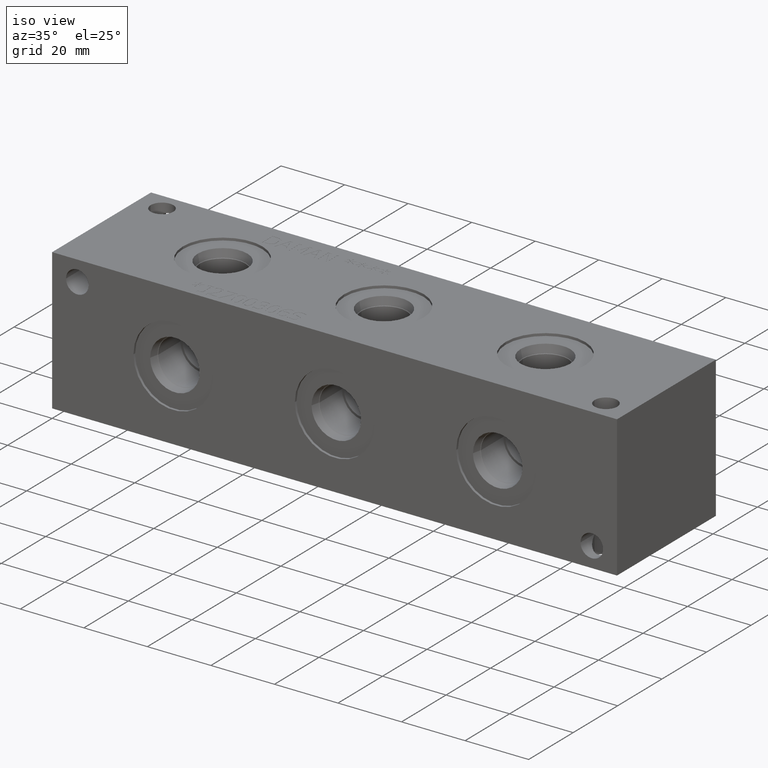
[diagram: clean part render]
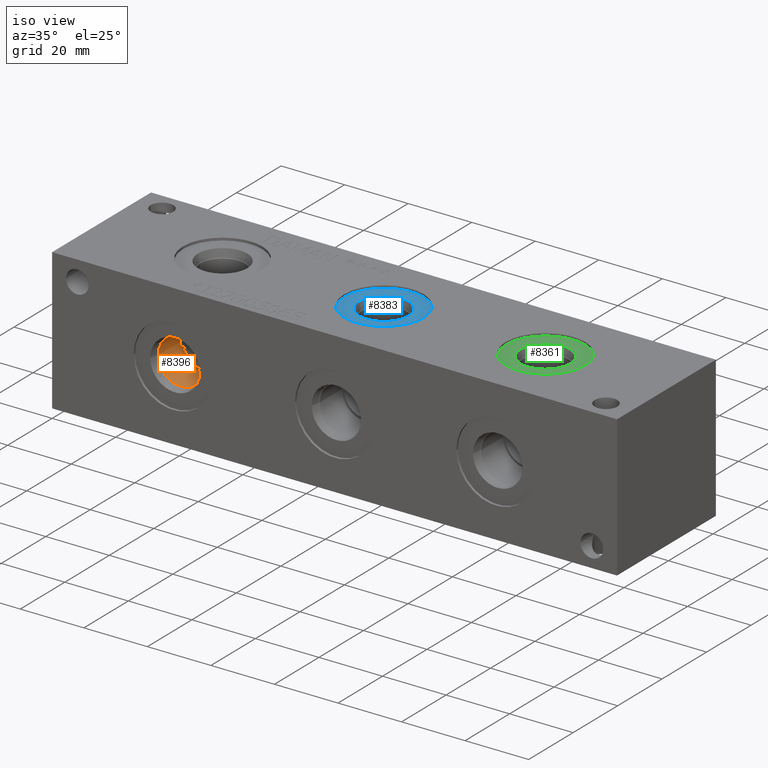
[diagram: same view with three faces highlighted in distinct colors, each labeled with its STEP entity id]
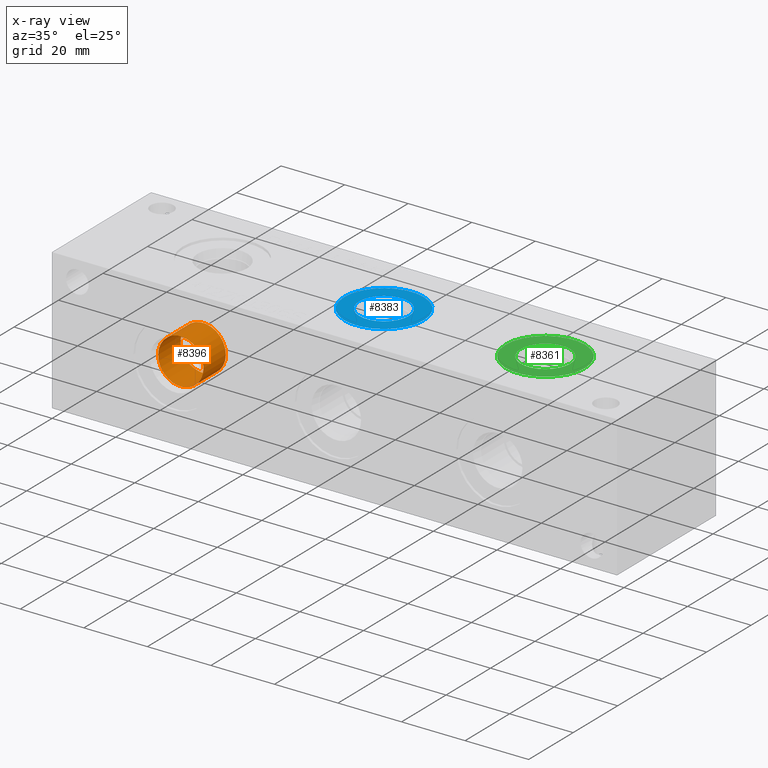
[diagram: x-ray of the same camera — body ghosted, the three highlighted faces saturated]
A machine part, iso view with three faces highlighted in distinct colors.
The next image is the same camera in x-ray (body ghosted, the three faces saturated) — at least one of them is partly hidden behind the body in this view.
Their STEP definitions:

[orange] entity #8396 — the highlighted cylindrical surface (bore or boss wall) has radius 7.1374 mm, axis along (0, -1, 0).
#125=CYLINDRICAL_SURFACE('',#8914,7.1374);
#290=CIRCLE('',#8911,7.1374);
#291=CIRCLE('',#8912,7.1374);
#293=CIRCLE('',#8915,7.1374);
#1019=FACE_OUTER_BOUND('',#1501,.T.);
#1501=EDGE_LOOP('',(#7406,#7407,#7408,#7409,#7410));
#2234=LINE('',#14660,#2947);
#2947=VECTOR('',#10621,7.1374);
#3979=VERTEX_POINT('',#14651);
#3980=VERTEX_POINT('',#14652);
#3982=VERTEX_POINT('',#14658);
#5140=EDGE_CURVE('',#3979,#3980,#290,.T.);
#5141=EDGE_CURVE('',#3980,#3979,#291,.T.);
#5143=EDGE_CURVE('',#3982,#3982,#293,.T.);
#5144=EDGE_CURVE('',#3982,#3980,#2234,.T.);
#7406=ORIENTED_EDGE('',*,*,#5143,.F.);
#7407=ORIENTED_EDGE('',*,*,#5144,.T.);
#7408=ORIENTED_EDGE('',*,*,#5140,.F.);
#7409=ORIENTED_EDGE('',*,*,#5141,.F.);
#7410=ORIENTED_EDGE('',*,*,#5144,.F.);
#8396=ADVANCED_FACE('',(#1019),#125,.F.);
#8911=AXIS2_PLACEMENT_3D('',#14653,#10611,#10612);
#8912=AXIS2_PLACEMENT_3D('',#14654,#10613,#10614);
#8914=AXIS2_PLACEMENT_3D('',#14657,#10617,#10618);
#8915=AXIS2_PLACEMENT_3D('',#14659,#10619,#10620);
#10611=DIRECTION('center_axis',(0.,-1.,0.));
#10612=DIRECTION('ref_axis',(1.,0.,0.));
#10613=DIRECTION('center_axis',(0.,-1.,0.));
#10614=DIRECTION('ref_axis',(1.,0.,0.));
#10617=DIRECTION('center_axis',(0.,-1.,0.));
#10618=DIRECTION('ref_axis',(1.,0.,0.));
#10619=DIRECTION('center_axis',(0.,1.,0.));
#10620=DIRECTION('ref_axis',(1.,0.,0.));
#10621=DIRECTION('',(0.,1.,0.));
#14651=CARTESIAN_POINT('',(45.2374,13.4874,22.225));
#14652=CARTESIAN_POINT('',(30.9626,13.4874,22.225));
#14653=CARTESIAN_POINT('Origin',(38.1,13.4874,22.225));
#14654=CARTESIAN_POINT('Origin',(38.1,13.4874,22.225));
#14657=CARTESIAN_POINT('Origin',(38.1,6.7437,22.225));
#14658=CARTESIAN_POINT('',(30.9626,3.429,22.225));
#14659=CARTESIAN_POINT('Origin',(38.1,3.429,22.225));
#14660=CARTESIAN_POINT('',(30.9626,6.7437,22.225));

[blue] entity #8383 — the highlighted planar face has unit normal (0, 0, -1).
#274=CIRCLE('',#8874,12.5095);
#275=CIRCLE('',#8875,12.5095);
#276=CIRCLE('',#8877,7.79780000000001);
#277=CIRCLE('',#8878,7.79780000000001);
#365=FACE_BOUND('',#1486,.T.);
#596=PLANE('',#8876);
#1006=FACE_OUTER_BOUND('',#1485,.T.);
#1485=EDGE_LOOP('',(#7340,#7341));
#1486=EDGE_LOOP('',(#7342,#7343));
#3959=VERTEX_POINT('',#14583);
#3960=VERTEX_POINT('',#14585);
#3961=VERTEX_POINT('',#14589);
#3962=VERTEX_POINT('',#14590);
#5106=EDGE_CURVE('',#3959,#3960,#274,.T.);
#5107=EDGE_CURVE('',#3960,#3959,#275,.T.);
#5108=EDGE_CURVE('',#3961,#3962,#276,.T.);
#5109=EDGE_CURVE('',#3962,#3961,#277,.T.);
#7340=ORIENTED_EDGE('',*,*,#5107,.F.);
#7341=ORIENTED_EDGE('',*,*,#5106,.F.);
#7342=ORIENTED_EDGE('',*,*,#5108,.T.);
#7343=ORIENTED_EDGE('',*,*,#5109,.T.);
#8383=ADVANCED_FACE('',(#1006,#365),#596,.F.);
#8874=AXIS2_PLACEMENT_3D('',#14586,#10527,#10528);
#8875=AXIS2_PLACEMENT_3D('',#14587,#10529,#10530);
#8876=AXIS2_PLACEMENT_3D('',#14588,#10531,#10532);
#8877=AXIS2_PLACEMENT_3D('',#14591,#10533,#10534);
#8878=AXIS2_PLACEMENT_3D('',#14592,#10535,#10536);
#10527=DIRECTION('center_axis',(0.,0.,-1.));
#10528=DIRECTION('ref_axis',(1.,0.,0.));
#10529=DIRECTION('center_axis',(0.,0.,-1.));
#10530=DIRECTION('ref_axis',(1.,0.,0.));
#10531=DIRECTION('center_axis',(0.,0.,-1.));
#10532=DIRECTION('ref_axis',(-1.,0.,0.));
#10533=DIRECTION('center_axis',(0.,0.,-1.));
#10534=DIRECTION('ref_axis',(1.,0.,0.));
#10535=DIRECTION('center_axis',(0.,0.,-1.));
#10536=DIRECTION('ref_axis',(1.,0.,0.));
#14583=CARTESIAN_POINT('',(76.3905,22.225,43.6626));
#14585=CARTESIAN_POINT('',(101.4095,22.225,43.6626));
#14586=CARTESIAN_POINT('Origin',(88.9,22.225,43.6626));
#14587=CARTESIAN_POINT('Origin',(88.9,22.225,43.6626));
#14588=CARTESIAN_POINT('Origin',(96.6978,22.225,43.6626));
#14589=CARTESIAN_POINT('',(96.6978,22.225,43.6626));
#14590=CARTESIAN_POINT('',(81.1022,22.225,43.6626));
#14591=CARTESIAN_POINT('Origin',(88.9,22.225,43.6626));
#14592=CARTESIAN_POINT('Origin',(88.9,22.225,43.6626));

[green] entity #8361 — the highlighted planar face has unit normal (0, 0, -1).
#241=CIRCLE('',#8819,12.5095);
#242=CIRCLE('',#8820,12.5095);
#243=CIRCLE('',#8822,7.79780000000001);
#244=CIRCLE('',#8823,7.79780000000001);
#361=FACE_BOUND('',#1460,.T.);
#592=PLANE('',#8821);
#984=FACE_OUTER_BOUND('',#1459,.T.);
#1459=EDGE_LOOP('',(#7234,#7235));
#1460=EDGE_LOOP('',(#7236,#7237));
#3930=VERTEX_POINT('',#14487);
#3931=VERTEX_POINT('',#14489);
#3932=VERTEX_POINT('',#14493);
#3933=VERTEX_POINT('',#14494);
#5061=EDGE_CURVE('',#3930,#3931,#241,.T.);
#5062=EDGE_CURVE('',#3931,#3930,#242,.T.);
#5063=EDGE_CURVE('',#3932,#3933,#243,.T.);
#5064=EDGE_CURVE('',#3933,#3932,#244,.T.);
#7234=ORIENTED_EDGE('',*,*,#5062,.F.);
#7235=ORIENTED_EDGE('',*,*,#5061,.F.);
#7236=ORIENTED_EDGE('',*,*,#5063,.T.);
#7237=ORIENTED_EDGE('',*,*,#5064,.T.);
#8361=ADVANCED_FACE('',(#984,#361),#592,.F.);
#8819=AXIS2_PLACEMENT_3D('',#14490,#10405,#10406);
#8820=AXIS2_PLACEMENT_3D('',#14491,#10407,#10408);
#8821=AXIS2_PLACEMENT_3D('',#14492,#10409,#10410);
#8822=AXIS2_PLACEMENT_3D('',#14495,#10411,#10412);
#8823=AXIS2_PLACEMENT_3D('',#14496,#10413,#10414);
#10405=DIRECTION('center_axis',(0.,0.,-1.));
#10406=DIRECTION('ref_axis',(1.,0.,0.));
#10407=DIRECTION('center_axis',(0.,0.,-1.));
#10408=DIRECTION('ref_axis',(1.,0.,0.));
#10409=DIRECTION('center_axis',(0.,0.,-1.));
#10410=DIRECTION('ref_axis',(-1.,0.,0.));
#10411=DIRECTION('center_axis',(0.,0.,-1.));
#10412=DIRECTION('ref_axis',(1.,0.,0.));
#10413=DIRECTION('center_axis',(0.,0.,-1.));
#10414=DIRECTION('ref_axis',(1.,0.,0.));
#14487=CARTESIAN_POINT('',(127.1905,22.225,43.6626));
#14489=CARTESIAN_POINT('',(152.2095,22.225,43.6626));
#14490=CARTESIAN_POINT('Origin',(139.7,22.225,43.6626));
#14491=CARTESIAN_POINT('Origin',(139.7,22.225,43.6626));
#14492=CARTESIAN_POINT('Origin',(147.4978,22.225,43.6626));
#14493=CARTESIAN_POINT('',(147.4978,22.225,43.6626));
#14494=CARTESIAN_POINT('',(131.9022,22.225,43.6626));
#14495=CARTESIAN_POINT('Origin',(139.7,22.225,43.6626));
#14496=CARTESIAN_POINT('Origin',(139.7,22.225,43.6626));